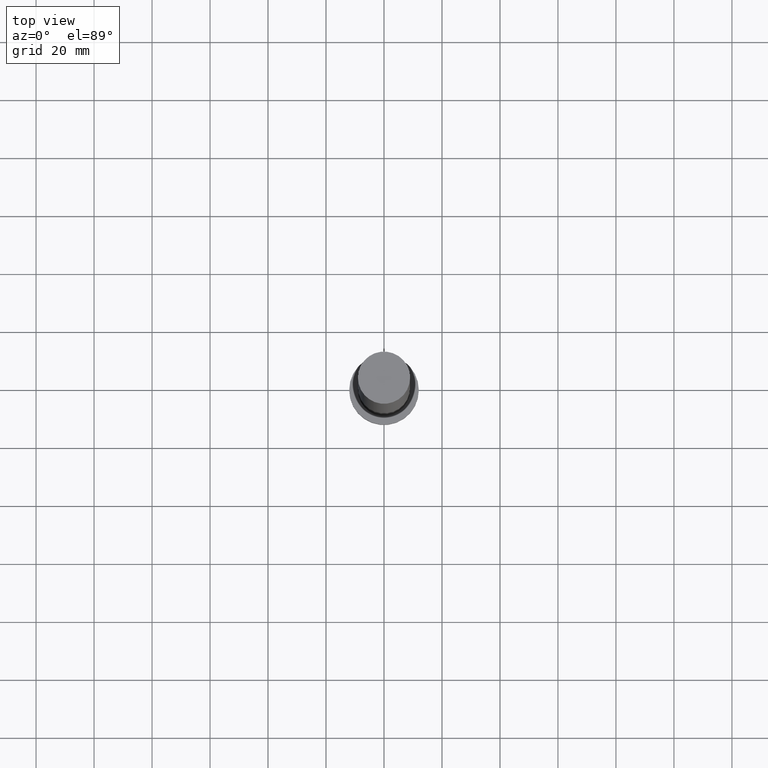
[diagram: clean part render]
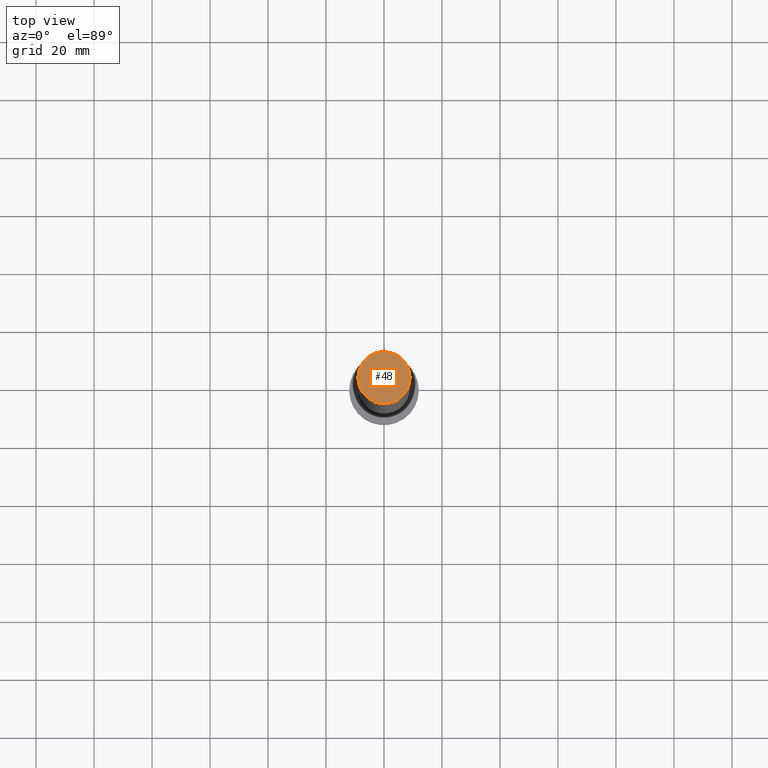
[diagram: same view with one face highlighted and labeled with its STEP entity id]
A machine part, top view. The second image highlights one B-rep face of the part: STEP entity #48.
In plain terms, the highlighted planar face has unit normal (0, 0, 1).
Its self-contained STEP definition (entity closure, byte-faithful):
#3 = CARTESIAN_POINT ( 'NONE',  ( 0.000000000000000000, 0.000000000000000000, 250.0000000000000000 ) ) ;
#7 = DIRECTION ( 'NONE',  ( 1.000000000000000000, 0.000000000000000000, 0.000000000000000000 ) ) ;
#16 = CIRCLE ( 'NONE', #204, 9.000000000000000000 ) ;
#21 = VERTEX_POINT ( 'NONE', #54 ) ;
#34 = DIRECTION ( 'NONE',  ( 1.000000000000000000, 0.000000000000000000, 0.000000000000000000 ) ) ;
#41 = AXIS2_PLACEMENT_3D ( 'NONE', #170, #73, #34 ) ;
#48 = ADVANCED_FACE ( 'NONE', ( #187 ), #162, .T. ) ;
#54 = CARTESIAN_POINT ( 'NONE',  ( -9.000000000000000000, 0.000000000000000000, 250.0000000000000000 ) ) ;
#63 = CARTESIAN_POINT ( 'NONE',  ( 9.000000000000000000, 1.102182119232617714E-15, 250.0000000000000000 ) ) ;
#73 = DIRECTION ( 'NONE',  ( 0.000000000000000000, 0.000000000000000000, 1.000000000000000000 ) ) ;
#79 = DIRECTION ( 'NONE',  ( 0.000000000000000000, 0.000000000000000000, 1.000000000000000000 ) ) ;
#99 = VERTEX_POINT ( 'NONE', #63 ) ;
#100 = EDGE_CURVE ( 'NONE', #21, #99, #16, .T. ) ;
#141 = DIRECTION ( 'NONE',  ( 0.000000000000000000, 0.000000000000000000, 1.000000000000000000 ) ) ;
#146 = EDGE_LOOP ( 'NONE', ( #241, #188 ) ) ;
#162 = PLANE ( 'NONE',  #198 ) ;
#170 = CARTESIAN_POINT ( 'NONE',  ( 0.000000000000000000, 0.000000000000000000, 250.0000000000000000 ) ) ;
#181 = DIRECTION ( 'NONE',  ( 1.000000000000000000, 0.000000000000000000, -0.000000000000000000 ) ) ;
#187 = FACE_OUTER_BOUND ( 'NONE', #146, .T. ) ;
#188 = ORIENTED_EDGE ( 'NONE', *, *, #229, .T. ) ;
#198 = AXIS2_PLACEMENT_3D ( 'NONE', #3, #141, #181 ) ;
#204 = AXIS2_PLACEMENT_3D ( 'NONE', #254, #79, #7 ) ;
#229 = EDGE_CURVE ( 'NONE', #99, #21, #236, .T. ) ;
#236 = CIRCLE ( 'NONE', #41, 9.000000000000000000 ) ;
#241 = ORIENTED_EDGE ( 'NONE', *, *, #100, .T. ) ;
#254 = CARTESIAN_POINT ( 'NONE',  ( 0.000000000000000000, 0.000000000000000000, 250.0000000000000000 ) ) ;